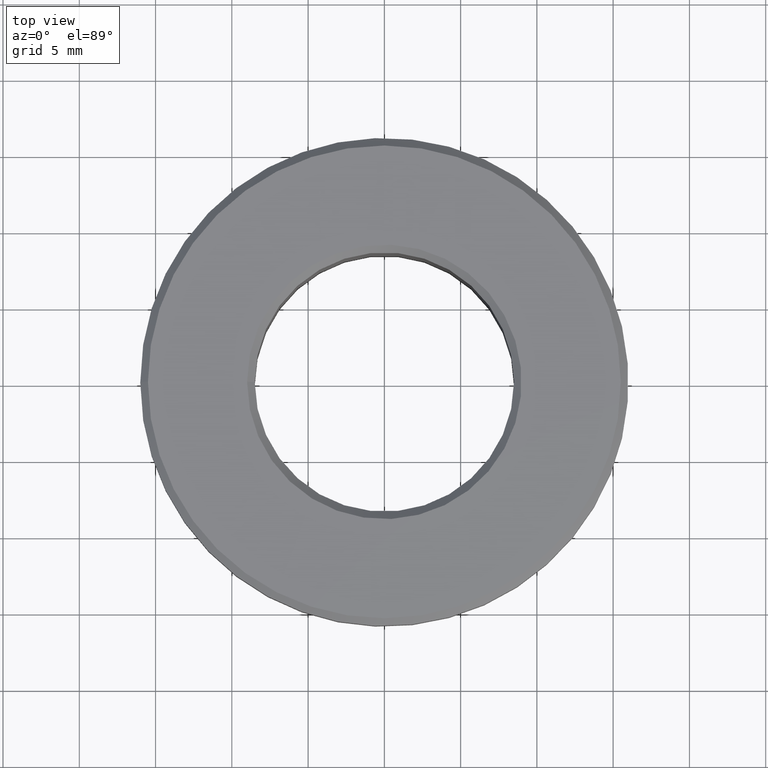
[diagram: clean part render]
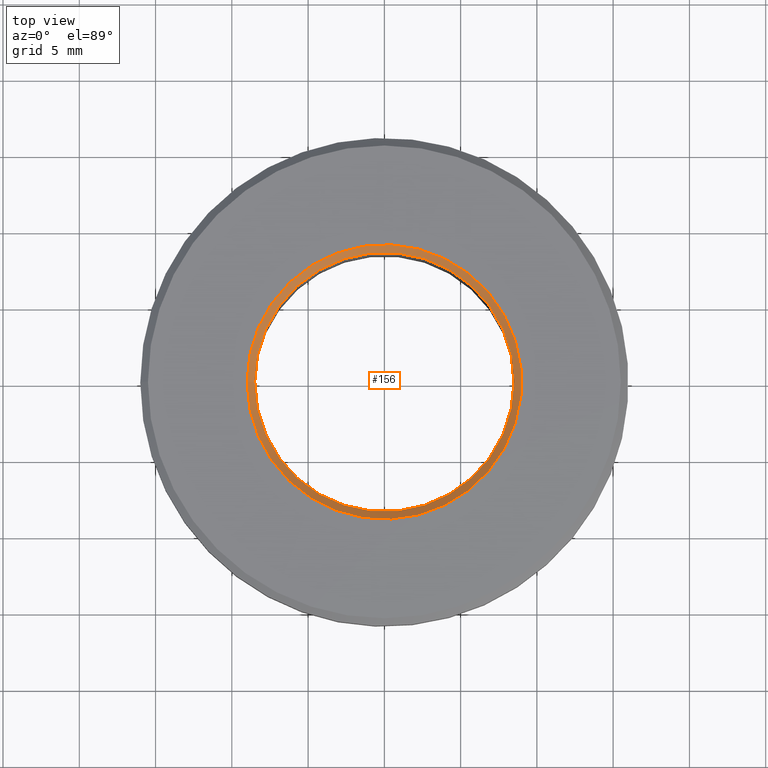
[diagram: same view with one face highlighted and labeled with its STEP entity id]
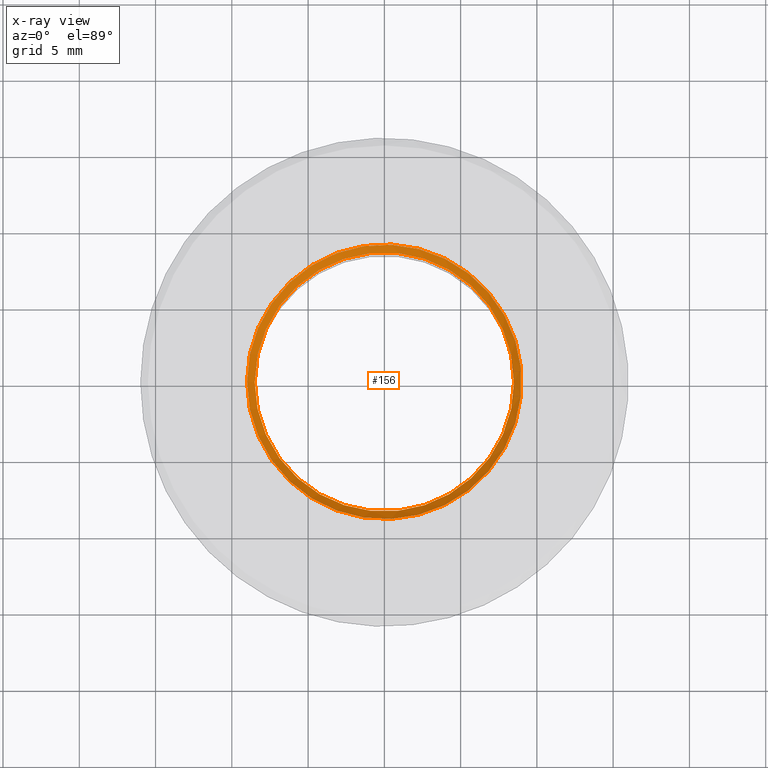
[diagram: x-ray of the same camera — body ghosted, the highlighted face saturated]
A machine part, top view. The second image highlights one B-rep face of the part: STEP entity #156.
The next image is the same camera in x-ray: the body ghosted, the highlighted face saturated — about 0% of this face is hidden behind the body in this view.
In plain terms, the highlighted conical surface has half-angle 45 deg.
Its self-contained STEP definition (entity closure, byte-faithful):
#156=ADVANCED_FACE('',(#179,#180),#181,.F.);
#179=FACE_BOUND('',#228,.T.);
#180=FACE_OUTER_BOUND('',#229,.T.);
#181=CONICAL_SURFACE('',#230,0.009,0.785398163397443);
#228=EDGE_LOOP('',(#291));
#229=EDGE_LOOP('',(#292));
#230=AXIS2_PLACEMENT_3D('',#293,#294,#295);
#291=ORIENTED_EDGE('',*,*,#384,.T.);
#292=ORIENTED_EDGE('',*,*,#385,.F.);
#293=CARTESIAN_POINT('',(0.0,0.0,0.016));
#294=DIRECTION('',(-0.0,6.12323399573677E-017,1.0));
#295=DIRECTION('',(0.0,-1.0,6.12323399573677E-017));
#384=EDGE_CURVE('',#417,#417,#418,.T.);
#385=EDGE_CURVE('',#419,#419,#420,.T.);
#417=VERTEX_POINT('',#493);
#418=CIRCLE('',#494,0.0085);
#419=VERTEX_POINT('',#495);
#420=CIRCLE('',#496,0.009);
#493=CARTESIAN_POINT('',(0.0,0.0085,0.0155));
#494=AXIS2_PLACEMENT_3D('',#533,#534,#535);
#495=CARTESIAN_POINT('',(0.0,0.009,0.016));
#496=AXIS2_PLACEMENT_3D('',#536,#537,#538);
#533=CARTESIAN_POINT('',(0.0,0.0,0.0155));
#534=DIRECTION('',(0.0,-6.12323399573677E-017,-1.0));
#535=DIRECTION('',(0.0,1.0,-6.12323399573677E-017));
#536=CARTESIAN_POINT('',(0.0,0.0,0.016));
#537=DIRECTION('',(0.0,-6.12323399573677E-017,-1.0));
#538=DIRECTION('',(0.0,1.0,-6.12323399573677E-017));